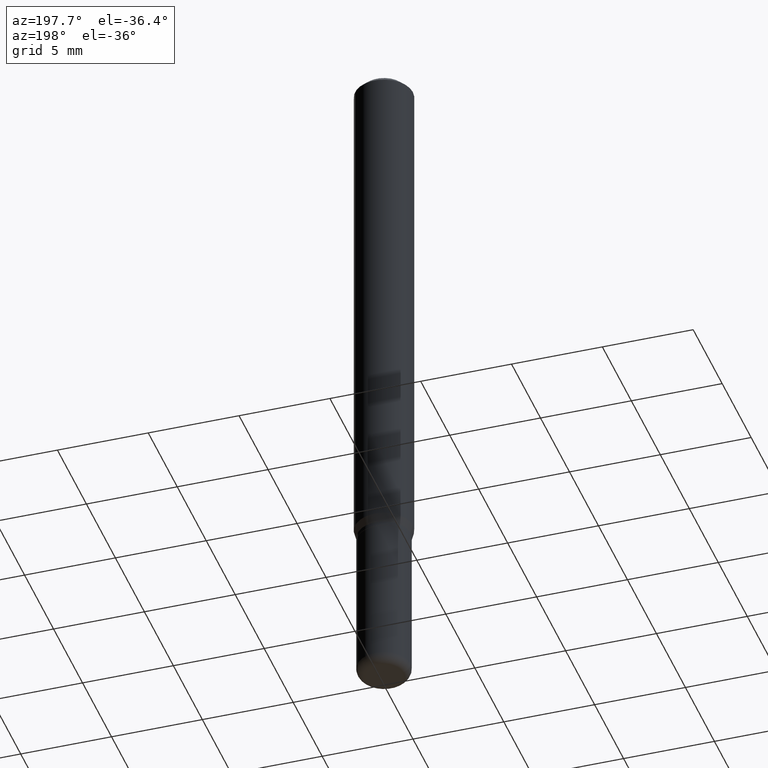
[diagram: clean part render]
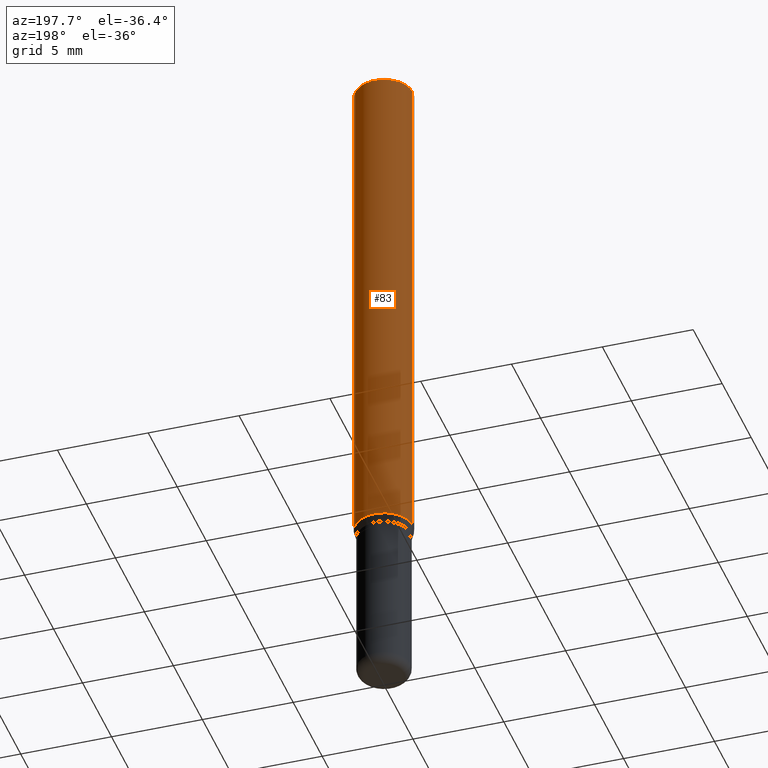
[diagram: same view with one face highlighted and labeled with its STEP entity id]
A machine part, auxiliary view. The second image highlights one B-rep face of the part: STEP entity #83.
In plain terms, the highlighted cylindrical surface (edge-blend (fillet) strip) has radius 1.5875 mm, axis along (-0, 0, 1).
Its self-contained STEP definition (entity closure, byte-faithful):
#14 = DIRECTION ( 'NONE',  ( -2.445468806185136597E-29, 3.491481338843145583E-15, 1.000000000000000000 ) ) ;
#25 = VERTEX_POINT ( 'NONE', #378 ) ;
#29 = DIRECTION ( 'NONE',  ( -2.445468806185136597E-29, 3.491481338843145583E-15, 1.000000000000000000 ) ) ;
#32 = AXIS2_PLACEMENT_3D ( 'NONE', #249, #29, #283 ) ;
#83 = ADVANCED_FACE ( 'NONE', ( #192 ), #260, .T. ) ;
#105 = ORIENTED_EDGE ( 'NONE', *, *, #386, .F. ) ;
#123 = CARTESIAN_POINT ( 'NONE',  ( -0.06250000000000000000, 4.440892098500626162E-16, -3.074334431409316114E-30 ) ) ;
#130 = CARTESIAN_POINT ( 'NONE',  ( 0.06250000000000000000, -4.888073874380378612E-16, -0.01499999999999970281 ) ) ;
#153 = DIRECTION ( 'NONE',  ( -2.445468806185136877E-29, 3.491481338843145188E-15, 1.000000000000000000 ) ) ;
#174 = VERTEX_POINT ( 'NONE', #385 ) ;
#187 = CARTESIAN_POINT ( 'NONE',  ( 0.06250000000000000000, -4.364351673553916694E-16, 3.047610484872459871E-30 ) ) ;
#192 = FACE_OUTER_BOUND ( 'NONE', #493, .T. ) ;
#194 = CARTESIAN_POINT ( 'NONE',  ( -0.06250000000000000000, -1.548394002303358444E-15, -0.01499999999999970281 ) ) ;
#214 = AXIS2_PLACEMENT_3D ( 'NONE', #425, #14, #444 ) ;
#220 = VERTEX_POINT ( 'NONE', #194 ) ;
#234 = CIRCLE ( 'NONE', #214, 0.06250000000000000000 ) ;
#249 = CARTESIAN_POINT ( 'NONE',  ( 3.668203209277632395E-31, -5.237222008264614861E-17, -0.01499999999999970281 ) ) ;
#253 = VECTOR ( 'NONE', #320, 39.37007874015748143 ) ;
#258 = VERTEX_POINT ( 'NONE', #130 ) ;
#260 = CYLINDRICAL_SURFACE ( 'NONE', #399, 0.06250000000000000000 ) ;
#283 = DIRECTION ( 'NONE',  ( 1.000000000000000000, -6.982962677686266711E-15, 0.000000000000000000 ) ) ;
#285 = VECTOR ( 'NONE', #153, 39.37007874015748143 ) ;
#296 = ORIENTED_EDGE ( 'NONE', *, *, #429, .T. ) ;
#297 = ORIENTED_EDGE ( 'NONE', *, *, #504, .F. ) ;
#298 = DIRECTION ( 'NONE',  ( -2.445468806185136597E-29, 3.491481338843145583E-15, 1.000000000000000000 ) ) ;
#315 = LINE ( 'NONE', #123, #253 ) ;
#320 = DIRECTION ( 'NONE',  ( -2.445468806185136877E-29, 3.491481338843145188E-15, 1.000000000000000000 ) ) ;
#321 = EDGE_CURVE ( 'NONE', #25, #220, #315, .T. ) ;
#323 = ORIENTED_EDGE ( 'NONE', *, *, #321, .T. ) ;
#339 = CARTESIAN_POINT ( 'NONE',  ( 0.000000000000000000, 0.000000000000000000, 0.000000000000000000 ) ) ;
#378 = CARTESIAN_POINT ( 'NONE',  ( -0.06250000000000000000, -3.488504994374132819E-15, -1.126339745962155803 ) ) ;
#385 = CARTESIAN_POINT ( 'NONE',  ( 0.06250000000000000000, -4.369029371579587499E-15, -1.126339745962155803 ) ) ;
#386 = EDGE_CURVE ( 'NONE', #174, #258, #388, .T. ) ;
#388 = LINE ( 'NONE', #187, #285 ) ;
#399 = AXIS2_PLACEMENT_3D ( 'NONE', #339, #298, #458 ) ;
#409 = CIRCLE ( 'NONE', #32, 0.06250000000000000000 ) ;
#425 = CARTESIAN_POINT ( 'NONE',  ( 2.754428713916943180E-29, -3.932594204224195830E-15, -1.126339745962155803 ) ) ;
#429 = EDGE_CURVE ( 'NONE', #174, #25, #234, .T. ) ;
#444 = DIRECTION ( 'NONE',  ( 1.000000000000000000, -6.982962677686262766E-15, 0.000000000000000000 ) ) ;
#458 = DIRECTION ( 'NONE',  ( 1.000000000000000000, -6.982962677686266711E-15, 4.876176775795935793E-29 ) ) ;
#493 = EDGE_LOOP ( 'NONE', ( #296, #323, #297, #105 ) ) ;
#504 = EDGE_CURVE ( 'NONE', #258, #220, #409, .T. ) ;